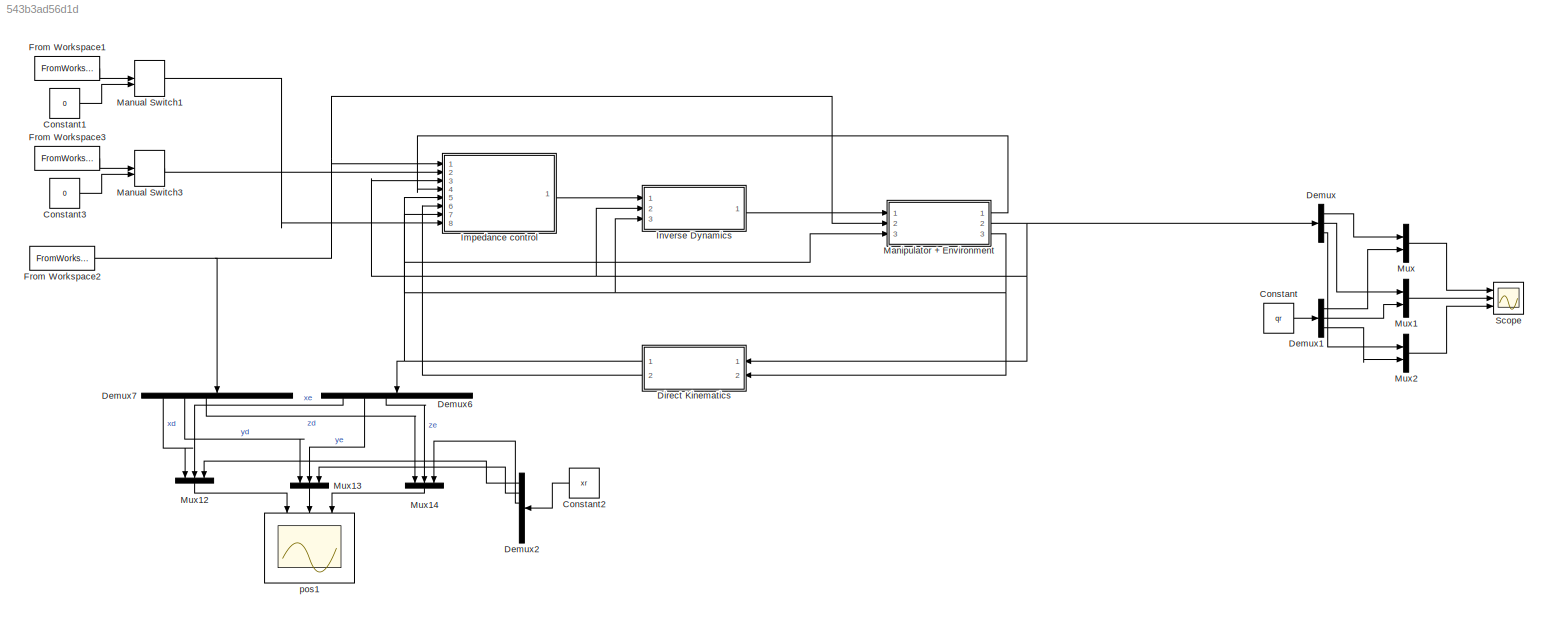
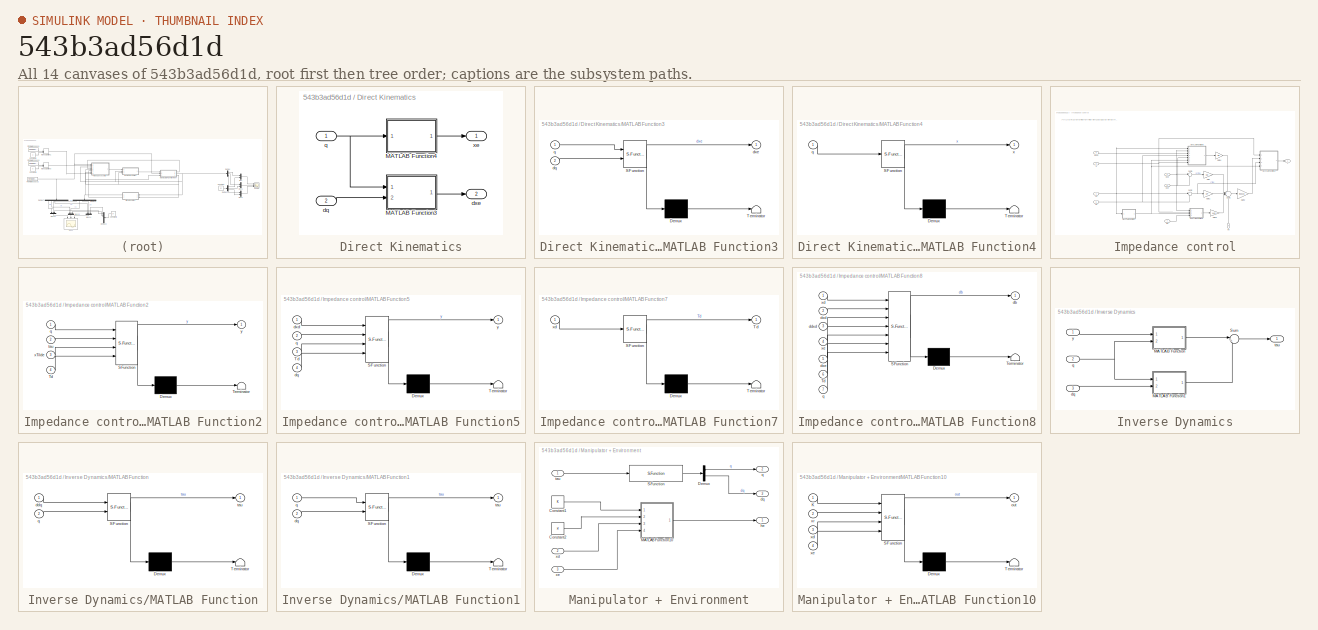
[diagram: thumbnail index - all 14 canvases of the model, root first then tree order]
MODEL slx_543b3ad56d1d
KIND model
CONFIG AbsTol = auto
CONFIG EnableMultiTasking = off
CONFIG FixedStep = Ts
CONFIG MaxStep = auto
CONFIG MinStep = auto
CONFIG RelTol = 1e-3
CONFIG SampleTimeConstraint = Unconstrained
CONFIG SolverName = FixedStepAuto
CONFIG StartTime = 0.0
CONFIG StopTime = 10
BLOCK [Constant] Constant
  Value = qr
BLOCK [Constant] Constant1
  Value = 0
BLOCK [Constant] Constant2
  NameLocation = top
  Value = xr
BLOCK [Constant] Constant3
  Value = 0
BLOCK [Demux] Demux
  Outputs = 3
  Ports = [1, 3]
BLOCK [Demux] Demux1
  Outputs = 3
  Ports = [1, 3]
BLOCK [Demux] Demux2
  NameLocation = top
  Outputs = 6
  Ports = [1, 6]
BLOCK [Demux] Demux6
  NameLocation = left
  Outputs = 6
  Ports = [1, 6]
BLOCK [Demux] Demux7
  NameLocation = left
  Outputs = 6
  Ports = [1, 6]
BLOCK [SubSystem] Direct Kinematics
  Ports = [2, 2]
  RequestExecContextInheritance = off
BLOCK [SubSystem] Direct Kinematics/MATLAB Function3
  ErrorFcn = Stateflow.Translate.translate
  PermitHierarchicalResolution = ExplicitOnly
  Ports = [2, 1]
  RequestExecContextInheritance = off
  SFBlockType = MATLAB Function
  TreatAsAtomicUnit = on
BLOCK [Demux] Direct Kinematics/MATLAB Function3/ Demux 
  Outputs = 1
  Ports = [1, 1]
BLOCK [S-Function] Direct Kinematics/MATLAB Function3/ SFunction 
  EnableBusSupport = on
  FunctionName = sf_sfun
  PortCounts = [2 2]
  Ports = [2, 2]
  SFcnIsStateOwnerBlock = off
  SFunctionDeploymentMode = off
  Tag = Stateflow S-Function 10
BLOCK [Terminator] Direct Kinematics/MATLAB Function3/ Terminator 
BLOCK [Inport] Direct Kinematics/MATLAB Function3/dq
  Port = 2
BLOCK [Outport] Direct Kinematics/MATLAB Function3/dxe
BLOCK [Inport] Direct Kinematics/MATLAB Function3/q
BLOCK [SubSystem] Direct Kinematics/MATLAB Function4
  ErrorFcn = Stateflow.Translate.translate
  PermitHierarchicalResolution = ExplicitOnly
  Ports = [1, 1]
  RequestExecContextInheritance = off
  SFBlockType = MATLAB Function
  TreatAsAtomicUnit = on
BLOCK [Demux] Direct Kinematics/MATLAB Function4/ Demux 
  Outputs = 1
  Ports = [1, 1]
BLOCK [S-Function] Direct Kinematics/MATLAB Function4/ SFunction 
  EnableBusSupport = on
  FunctionName = sf_sfun
  PortCounts = [1 2]
  Ports = [1, 2]
  SFcnIsStateOwnerBlock = off
  SFunctionDeploymentMode = off
  Tag = Stateflow S-Function 13
BLOCK [Terminator] Direct Kinematics/MATLAB Function4/ Terminator 
BLOCK [Inport] Direct Kinematics/MATLAB Function4/q
BLOCK [Outport] Direct Kinematics/MATLAB Function4/x
BLOCK [Inport] Direct Kinematics/dq
  Port = 2
BLOCK [Outport] Direct Kinematics/dxe
  Port = 2
BLOCK [Inport] Direct Kinematics/q
BLOCK [Outport] Direct Kinematics/xe
BLOCK [FromWorkspace] From Workspace1
  VariableName = ddxd
BLOCK [FromWorkspace] From Workspace2
  VariableName = xd
BLOCK [FromWorkspace] From Workspace3
  VariableName = dxd
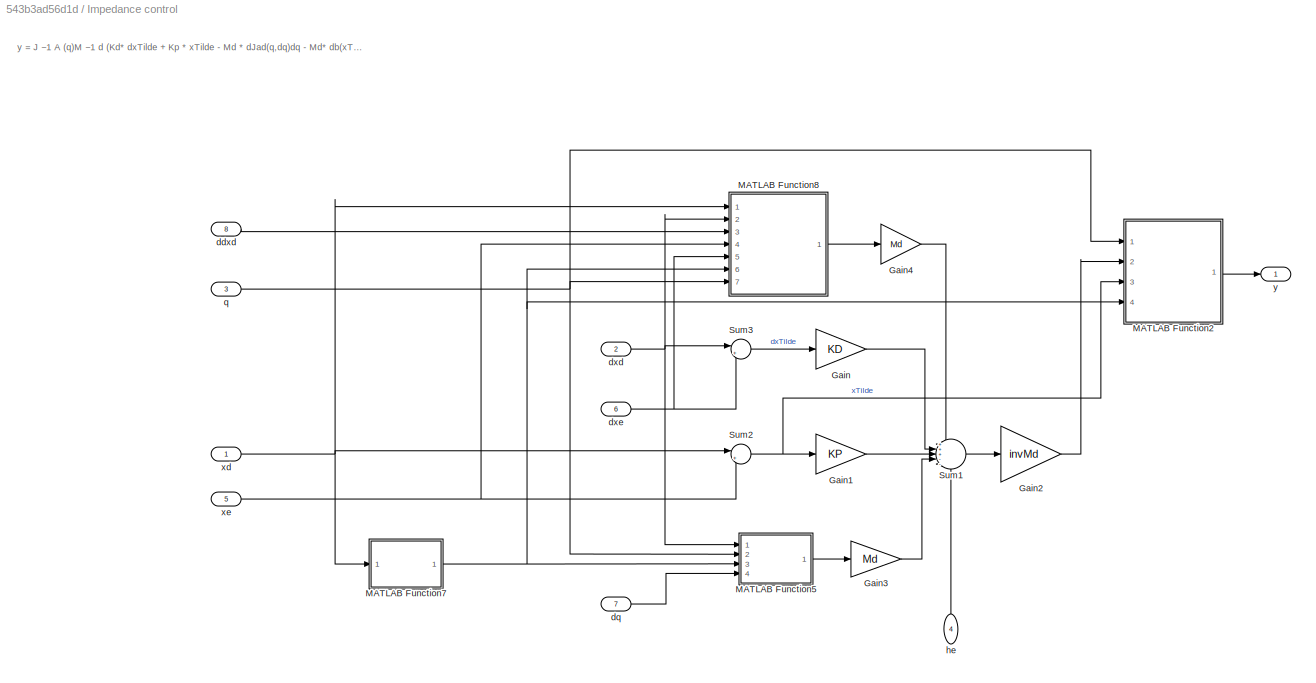
BLOCK [SubSystem] Impedance control
  Ports = [8, 1]
  RequestExecContextInheritance = off
BLOCK [Gain] Impedance control/Gain
  Gain = KD
BLOCK [Gain] Impedance control/Gain1
  Gain = KP
BLOCK [Gain] Impedance control/Gain2
  Gain = invMd
  Multiplication = Matrix(K*u)
BLOCK [Gain] Impedance control/Gain3
  Gain = Md
  Multiplication = Matrix(K*u)
BLOCK [Gain] Impedance control/Gain4
  Gain = Md
  Multiplication = Matrix(K*u)
BLOCK [SubSystem] Impedance control/MATLAB Function2
  ErrorFcn = Stateflow.Translate.translate
  PermitHierarchicalResolution = ExplicitOnly
  Ports = [4, 1]
  RequestExecContextInheritance = off
  SFBlockType = MATLAB Function
  TreatAsAtomicUnit = on
BLOCK [Demux] Impedance control/MATLAB Function2/ Demux 
  Outputs = 1
  Ports = [1, 1]
BLOCK [S-Function] Impedance control/MATLAB Function2/ SFunction 
  EnableBusSupport = on
  FunctionName = sf_sfun
  PortCounts = [4 2]
  Ports = [4, 2]
  SFcnIsStateOwnerBlock = off
  SFunctionDeploymentMode = off
  Tag = Stateflow S-Function 12
BLOCK [Terminator] Impedance control/MATLAB Function2/ Terminator 
BLOCK [Inport] Impedance control/MATLAB Function2/Td
  Port = 4
BLOCK [Inport] Impedance control/MATLAB Function2/q
BLOCK [Inport] Impedance control/MATLAB Function2/tau
  Port = 2
BLOCK [Inport] Impedance control/MATLAB Function2/xTilde
  Port = 3
BLOCK [Outport] Impedance control/MATLAB Function2/y
BLOCK [SubSystem] Impedance control/MATLAB Function5
  ErrorFcn = Stateflow.Translate.translate
  PermitHierarchicalResolution = ExplicitOnly
  Ports = [4, 1]
  RequestExecContextInheritance = off
  SFBlockType = MATLAB Function
  TreatAsAtomicUnit = on
BLOCK [Demux] Impedance control/MATLAB Function5/ Demux 
  Outputs = 1
  Ports = [1, 1]
BLOCK [S-Function] Impedance control/MATLAB Function5/ SFunction 
  EnableBusSupport = on
  FunctionName = sf_sfun
  PortCounts = [4 2]
  Ports = [4, 2]
  SFcnIsStateOwnerBlock = off
  SFunctionDeploymentMode = off
  Tag = Stateflow S-Function 14
BLOCK [Terminator] Impedance control/MATLAB Function5/ Terminator 
BLOCK [Inport] Impedance control/MATLAB Function5/Td
  Port = 3
BLOCK [Inport] Impedance control/MATLAB Function5/dq
  Port = 4
BLOCK [Inport] Impedance control/MATLAB Function5/dxd
BLOCK [Inport] Impedance control/MATLAB Function5/q
  Port = 2
BLOCK [Outport] Impedance control/MATLAB Function5/y
BLOCK [SubSystem] Impedance control/MATLAB Function7
  ErrorFcn = Stateflow.Translate.translate
  PermitHierarchicalResolution = ExplicitOnly
  Ports = [1, 1]
  RequestExecContextInheritance = off
  SFBlockType = MATLAB Function
  TreatAsAtomicUnit = on
BLOCK [Demux] Impedance control/MATLAB Function7/ Demux 
  Outputs = 1
  Ports = [1, 1]
BLOCK [S-Function] Impedance control/MATLAB Function7/ SFunction 
  EnableBusSupport = on
  FunctionName = sf_sfun
  PortCounts = [1 2]
  Ports = [1, 2]
  SFcnIsStateOwnerBlock = off
  SFunctionDeploymentMode = off
  Tag = Stateflow S-Function 16
BLOCK [Terminator] Impedance control/MATLAB Function7/ Terminator 
BLOCK [Outport] Impedance control/MATLAB Function7/Td
BLOCK [Inport] Impedance control/MATLAB Function7/xd
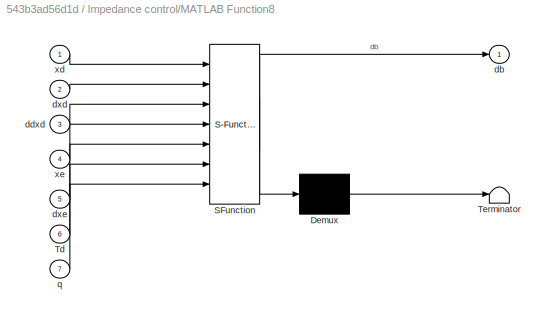
BLOCK [SubSystem] Impedance control/MATLAB Function8
  ErrorFcn = Stateflow.Translate.translate
  PermitHierarchicalResolution = ExplicitOnly
  Ports = [7, 1]
  RequestExecContextInheritance = off
  SFBlockType = MATLAB Function
  TreatAsAtomicUnit = on
BLOCK [Demux] Impedance control/MATLAB Function8/ Demux 
  Outputs = 1
  Ports = [1, 1]
BLOCK [S-Function] Impedance control/MATLAB Function8/ SFunction 
  EnableBusSupport = on
  FunctionName = sf_sfun
  PortCounts = [7 2]
  Ports = [7, 2]
  SFcnIsStateOwnerBlock = off
  SFunctionDeploymentMode = off
  Tag = Stateflow S-Function 17
BLOCK [Terminator] Impedance control/MATLAB Function8/ Terminator 
BLOCK [Inport] Impedance control/MATLAB Function8/Td
  Port = 6
BLOCK [Outport] Impedance control/MATLAB Function8/db
BLOCK [Inport] Impedance control/MATLAB Function8/ddxd
  Port = 3
BLOCK [Inport] Impedance control/MATLAB Function8/dxd
  Port = 2
BLOCK [Inport] Impedance control/MATLAB Function8/dxe
  Port = 5
BLOCK [Inport] Impedance control/MATLAB Function8/q
  Port = 7
BLOCK [Inport] Impedance control/MATLAB Function8/xd
BLOCK [Inport] Impedance control/MATLAB Function8/xe
  Port = 4
BLOCK [Sum] Impedance control/Sum1
  Inputs = +++--
  Ports = [5, 1]
BLOCK [Sum] Impedance control/Sum2
  Inputs = |+-
  Ports = [2, 1]
BLOCK [Sum] Impedance control/Sum3
  Inputs = |+-
  Ports = [2, 1]
BLOCK [Inport] Impedance control/ddxd
  Port = 8
BLOCK [Inport] Impedance control/dq
  Port = 7
BLOCK [Inport] Impedance control/dxd
  Port = 2
BLOCK [Inport] Impedance control/dxe
  Port = 6
BLOCK [Inport] Impedance control/he
  NameLocation = left
  Port = 4
BLOCK [Inport] Impedance control/q
  Port = 3
BLOCK [Inport] Impedance control/xd
BLOCK [Inport] Impedance control/xe
  Port = 5
BLOCK [Outport] Impedance control/y
BLOCK [SubSystem] Inverse Dynamics
  Ports = [3, 1]
  RequestExecContextInheritance = off
BLOCK [SubSystem] Inverse Dynamics/MATLAB Function
  ErrorFcn = Stateflow.Translate.translate
  PermitHierarchicalResolution = ExplicitOnly
  Ports = [2, 1]
  RequestExecContextInheritance = off
  SFBlockType = MATLAB Function
  TreatAsAtomicUnit = on
BLOCK [Demux] Inverse Dynamics/MATLAB Function/ Demux 
  Outputs = 1
  Ports = [1, 1]
BLOCK [S-Function] Inverse Dynamics/MATLAB Function/ SFunction 
  EnableBusSupport = on
  FunctionName = sf_sfun
  PortCounts = [2 2]
  Ports = [2, 2]
  SFcnIsStateOwnerBlock = off
  SFunctionDeploymentMode = off
  Tag = Stateflow S-Function 18
BLOCK [Terminator] Inverse Dynamics/MATLAB Function/ Terminator 
BLOCK [Inport] Inverse Dynamics/MATLAB Function/ddq
BLOCK [Inport] Inverse Dynamics/MATLAB Function/q
  Port = 2
BLOCK [Outport] Inverse Dynamics/MATLAB Function/tau
BLOCK [SubSystem] Inverse Dynamics/MATLAB Function1
  ErrorFcn = Stateflow.Translate.translate
  PermitHierarchicalResolution = ExplicitOnly
  Ports = [2, 1]
  RequestExecContextInheritance = off
  SFBlockType = MATLAB Function
  TreatAsAtomicUnit = on
BLOCK [Demux] Inverse Dynamics/MATLAB Function1/ Demux 
  Outputs = 1
  Ports = [1, 1]
BLOCK [S-Function] Inverse Dynamics/MATLAB Function1/ SFunction 
  EnableBusSupport = on
  FunctionName = sf_sfun
  PortCounts = [2 2]
  Ports = [2, 2]
  SFcnIsStateOwnerBlock = off
  SFunctionDeploymentMode = off
  Tag = Stateflow S-Function 19
BLOCK [Terminator] Inverse Dynamics/MATLAB Function1/ Terminator 
BLOCK [Inport] Inverse Dynamics/MATLAB Function1/dq
  Port = 2
BLOCK [Inport] Inverse Dynamics/MATLAB Function1/q
BLOCK [Outport] Inverse Dynamics/MATLAB Function1/tau
BLOCK [Sum] Inverse Dynamics/Sum
  Inputs = |++
  Ports = [2, 1]
BLOCK [Inport] Inverse Dynamics/dq
  Port = 3
BLOCK [Inport] Inverse Dynamics/q
  Port = 2
BLOCK [Outport] Inverse Dynamics/tau
BLOCK [Inport] Inverse Dynamics/y
BLOCK [SubSystem] Manipulator + Environment
  Ports = [3, 3]
  RequestExecContextInheritance = off
BLOCK [Constant] Manipulator + Environment/Constant1
  Value = K
BLOCK [Constant] Manipulator + Environment/Constant2
  Value = xr
BLOCK [Demux] Manipulator + Environment/Demux
  Outputs = 2
  Ports = [1, 2]
BLOCK [SubSystem] Manipulator + Environment/MATLAB Function10
  ErrorFcn = Stateflow.Translate.translate
  PermitHierarchicalResolution = ExplicitOnly
  Ports = [4, 1]
  RequestExecContextInheritance = off
  SFBlockType = MATLAB Function
  TreatAsAtomicUnit = on
BLOCK [Demux] Manipulator + Environment/MATLAB Function10/ Demux 
  Outputs = 1
  Ports = [1, 1]
BLOCK [S-Function] Manipulator + Environment/MATLAB Function10/ SFunction 
  EnableBusSupport = on
  FunctionName = sf_sfun
  PortCounts = [4 2]
  Ports = [4, 2]
  SFcnIsStateOwnerBlock = off
  SFunctionDeploymentMode = off
  Tag = Stateflow S-Function 20
BLOCK [Terminator] Manipulator + Environment/MATLAB Function10/ Terminator 
BLOCK [Inport] Manipulator + Environment/MATLAB Function10/K
BLOCK [Outport] Manipulator + Environment/MATLAB Function10/out
BLOCK [Inport] Manipulator + Environment/MATLAB Function10/xd
  Port = 3
BLOCK [Inport] Manipulator + Environment/MATLAB Function10/xe
  Port = 4
BLOCK [Inport] Manipulator + Environment/MATLAB Function10/xr
  Port = 2
BLOCK [S-Function] Manipulator + Environment/S-Function
  EnableBusSupport = off
  FunctionName = fwd_dyn_joint_lagrangian
  Parameters = myRobot,qi,dqi
  Ports = [1, 1]
  SFcnIsStateOwnerBlock = off
  SFunctionDeploymentMode = off
BLOCK [Outport] Manipulator + Environment/dq
  Port = 3
BLOCK [Outport] Manipulator + Environment/he
BLOCK [Outport] Manipulator + Environment/q
  Port = 2
BLOCK [Inport] Manipulator + Environment/tau
BLOCK [Inport] Manipulator + Environment/xd
  Port = 2
BLOCK [Inport] Manipulator + Environment/xe
  Port = 3
BLOCK [ManualSwitch] Manual Switch1
BLOCK [ManualSwitch] Manual Switch3
BLOCK [Mux] Mux
  DisplayOption = bar
  Inputs = 2
  Ports = [2, 1]
BLOCK [Mux] Mux1
  DisplayOption = bar
  Inputs = 2
  Ports = [2, 1]
BLOCK [Mux] Mux12
  DisplayOption = bar
  Inputs = 3
  NameLocation = left
  Ports = [3, 1]
BLOCK [Mux] Mux13
  DisplayOption = bar
  Inputs = 3
  NameLocation = left
  Ports = [3, 1]
BLOCK [Mux] Mux14
  DisplayOption = bar
  Inputs = 3
  NameLocation = left
  Ports = [3, 1]
BLOCK [Mux] Mux2
  DisplayOption = bar
  Inputs = 2
  Ports = [2, 1]
BLOCK [Scope] Scope
  Floating = off
  NumInputPorts = 3
  Ports = [3]
  ScopeSpecificationString = Simulink.scopes.TimeScopeBlockCfg('CurrentConfiguration', extmgr.ConfigurationSet(extmgr.Configuration('Core','General UI',true),extmgr.Configuration('Core','Source UI',true),extmgr.Configuration('Sources','WiredSimulink',true,'DataLoggingVariableName','ScopeData1'),extmgr.Configuration('Visuals','Time Domain',true,'SerializedDisplays',{struct('MinYLimReal','-0.0605','MaxYLimReal','0.22788','YLabe...<+2779ch>
BLOCK [Scope] pos1
  Floating = off
  NameLocation = left
  NumInputPorts = 3
  Ports = [3]
  ScopeSpecificationString = Simulink.scopes.TimeScopeBlockCfg('CurrentConfiguration', extmgr.ConfigurationSet(extmgr.Configuration('Core','General UI',true),extmgr.Configuration('Core','Source UI',true),extmgr.Configuration('Sources','WiredSimulink',true,'DataLoggingVariableName','ScopeData1'),extmgr.Configuration('Visuals','Time Domain',true,'SerializedDisplays',{struct('MinYLimReal','0.54','MaxYLimReal','0.74','YLabelReal'...<+3409ch>
ANNOTATION Impedance control: y = J −1 A (q)M −1 d ( Kd* dxTilde + Kp * xTilde - Md * dJad(q,dq)dq - Md* db(xTilde, Rd, dod, wd) - hde)
LINE Constant1:1 -> Manual Switch1:2
LINE Constant2:1 -> Demux2:1
LINE Constant3:1 -> Manual Switch3:2
LINE Constant:1 -> Demux1:1
LINE Demux1:1 -> Mux:2
LINE Demux1:2 -> Mux1:2
LINE Demux1:3 -> Mux2:2
LINE Demux2:1 -> Mux12:3
LINE Demux2:2 -> Mux13:3
LINE Demux2:3 -> Mux14:3
LINE Demux6:1 -> Mux12:2
LINE Demux6:2 -> Mux13:2
LINE Demux6:3 -> Mux14:2
LINE Demux7:1 -> Mux12:1
LINE Demux7:2 -> Mux13:1
LINE Demux7:3 -> Mux14:1
LINE Demux:1 -> Mux:1
LINE Demux:2 -> Mux1:1
LINE Demux:3 -> Mux2:1
LINE Direct Kinematics/MATLAB Function3:1 -> Direct Kinematics/dxe:1
LINE Direct Kinematics/MATLAB Function4:1 -> Direct Kinematics/xe:1
LINE Direct Kinematics/dq:1 -> Direct Kinematics/MATLAB Function3:2
NET Direct Kinematics/q:1 -> Direct Kinematics/MATLAB Function3:1, Direct Kinematics/MATLAB Function4:1
NET Direct Kinematics:1 -> Demux6:1, Impedance control:5, Manipulator + Environment:3
LINE Direct Kinematics:2 -> Impedance control:6
LINE From Workspace1:1 -> Manual Switch1:1
NET From Workspace2:1 -> Demux7:1, Impedance control:1, Manipulator + Environment:2
LINE From Workspace3:1 -> Manual Switch3:1
LINE Impedance control/Gain1:1 -> Impedance control/Sum1:3
LINE Impedance control/Gain2:1 -> Impedance control/MATLAB Function2:2
LINE Impedance control/Gain3:1 -> Impedance control/Sum1:4
LINE Impedance control/Gain4:1 -> Impedance control/Sum1:1
LINE Impedance control/Gain:1 -> Impedance control/Sum1:2
LINE Impedance control/MATLAB Function2:1 -> Impedance control/y:1
LINE Impedance control/MATLAB Function5:1 -> Impedance control/Gain3:1
NET Impedance control/MATLAB Function7:1 -> Impedance control/MATLAB Function2:4, Impedance control/MATLAB Function5:3, Impedance control/MATLAB Function8:6
LINE Impedance control/MATLAB Function8:1 -> Impedance control/Gain4:1
LINE Impedance control/Sum1:1 -> Impedance control/Gain2:1
NET Impedance control/Sum2:1 -> Impedance control/Gain1:1, Impedance control/MATLAB Function2:3
LINE Impedance control/Sum3:1 -> Impedance control/Gain:1
LINE Impedance control/ddxd:1 -> Impedance control/MATLAB Function8:3
LINE Impedance control/dq:1 -> Impedance control/MATLAB Function5:4
NET Impedance control/dxd:1 -> Impedance control/MATLAB Function5:1, Impedance control/MATLAB Function8:2, Impedance control/Sum3:1
NET Impedance control/dxe:1 -> Impedance control/MATLAB Function8:5, Impedance control/Sum3:2
LINE Impedance control/he:1 -> Impedance control/Sum1:5
NET Impedance control/q:1 -> Impedance control/MATLAB Function2:1, Impedance control/MATLAB Function5:2, Impedance control/MATLAB Function8:7
NET Impedance control/xd:1 -> Impedance control/MATLAB Function7:1, Impedance control/MATLAB Function8:1, Impedance control/Sum2:1
NET Impedance control/xe:1 -> Impedance control/MATLAB Function8:4, Impedance control/Sum2:2
LINE Impedance control:1 -> Inverse Dynamics:1
LINE Inverse Dynamics/MATLAB Function1:1 -> Inverse Dynamics/Sum:2
LINE Inverse Dynamics/MATLAB Function:1 -> Inverse Dynamics/Sum:1
LINE Inverse Dynamics/Sum:1 -> Inverse Dynamics/tau:1
LINE Inverse Dynamics/dq:1 -> Inverse Dynamics/MATLAB Function1:2
NET Inverse Dynamics/q:1 -> Inverse Dynamics/MATLAB Function1:1, Inverse Dynamics/MATLAB Function:2
LINE Inverse Dynamics/y:1 -> Inverse Dynamics/MATLAB Function:1
LINE Inverse Dynamics:1 -> Manipulator + Environment:1
LINE Manipulator + Environment/Constant1:1 -> Manipulator + Environment/MATLAB Function10:1
LINE Manipulator + Environment/Constant2:1 -> Manipulator + Environment/MATLAB Function10:2
LINE Manipulator + Environment/Demux:1 -> Manipulator + Environment/q:1
LINE Manipulator + Environment/Demux:2 -> Manipulator + Environment/dq:1
LINE Manipulator + Environment/MATLAB Function10:1 -> Manipulator + Environment/he:1
LINE Manipulator + Environment/S-Function:1 -> Manipulator + Environment/Demux:1
LINE Manipulator + Environment/tau:1 -> Manipulator + Environment/S-Function:1
LINE Manipulator + Environment/xd:1 -> Manipulator + Environment/MATLAB Function10:3
LINE Manipulator + Environment/xe:1 -> Manipulator + Environment/MATLAB Function10:4
LINE Manipulator + Environment:1 -> Impedance control:4
NET Manipulator + Environment:2 -> Demux:1, Direct Kinematics:1, Impedance control:3, Inverse Dynamics:2
NET Manipulator + Environment:3 -> Direct Kinematics:2, Impedance control:7, Inverse Dynamics:3
LINE Manual Switch1:1 -> Impedance control:8
LINE Manual Switch3:1 -> Impedance control:2
LINE Mux12:1 -> pos1:1
LINE Mux13:1 -> pos1:2
LINE Mux14:1 -> pos1:3
LINE Mux1:1 -> Scope:2
LINE Mux2:1 -> Scope:3
LINE Mux:1 -> Scope:1
note: NET lines group one-source signal fan-out (src -> all destinations, sorted); 1:1 wires keep LINE
CHART Direct Kinematics/MATLAB Function3 states=1 transitions=1
  STATE_LABEL 'eML_blk_kernel()'
  STATE_LABEL 'SCRIPT:\nfunction dxe = Ja(q, dq)\n\ndxe = getJa(q)*dq;\n'
CHART Impedance control/MATLAB Function2 states=1 transitions=1
  STATE_LABEL 'eML_blk_kernel()'
  STATE_LABEL 'SCRIPT:\nfunction y = invJad(q, tau, xTilde, Td)\njad = getJad(q, xTilde, Td);\ny = pinv(jad)*tau;\n'
CHART Direct Kinematics/MATLAB Function4 states=1 transitions=1
  STATE_LABEL 'eML_blk_kernel()'
  STATE_LABEL 'SCRIPT:\nfunction x = k(q)\n\nx = getK(q);\n'
CHART Impedance control/MATLAB Function5 states=1 transitions=1
  STATE_LABEL 'eML_blk_kernel()'
  STATE_LABEL 'SCRIPT:\nfunction y = dJadq(dxd, q, Td,dq)\n    y = getDiffJad(dxd,q,Td,dq)*dq;\n\n'
CHART Impedance control/MATLAB Function7 states=1 transitions=1
  STATE_LABEL 'eML_blk_kernel()'
  STATE_LABEL "SCRIPT:\nfunction Td = getTd(xd)\nRd = eul2rotm(xd(4:6)','ZYZ');\nt = xd(1:3);\nTd = [Rd t\n    zeros(1,3) 1];"
CHART Impedance control/MATLAB Function8 states=1 transitions=1
  STATE_LABEL 'eML_blk_kernel()'
  STATE_LABEL 'SCRIPT:\nfunction db = diffB(xd,dxd,ddxd,xe,dxe, Td,q)\n\ndb = getDiffImpB(xd,dxd,ddxd,xe,dxe, Td,q);\n'
CHART Inverse Dynamics/MATLAB Function states=1 transitions=1
  STATE_LABEL 'eML_blk_kernel()'
  STATE_LABEL 'SCRIPT:\nfunction tau = B(ddq,q) \n\ntau = getB(q)*ddq;\n'
CHART Inverse Dynamics/MATLAB Function1 states=1 transitions=1
  STATE_LABEL 'eML_blk_kernel()'
  STATE_LABEL 'SCRIPT:\nfunction tau = n(q, dq)\n\ntau = getN(q, dq);\n'
CHART Manipulator + Environment/MATLAB Function10 states=1 transitions=1
  STATE_LABEL 'eML_blk_kernel()'
  STATE_LABEL 'SCRIPT:\nfunction out = hde(K,xr, xd, xe)\n%consider the interaction only in z direction\n%xe(2) > xr(2) || xe(1) > xr(1)\n% if the end effector touch the environment \nhe = zeros(6,1);\n\nif xe(3) < xr(3)\n    %The interaction force between the end-effector and the environment is\n    dxrd = xd-xr;\n    dxed = xd-xe;\n    dxre = dxrd-dxed;\n    he = K*dxre;\nend\n\nout = he;'
CHART  states=0 transitions=0
CHART  states=0 transitions=0
CHART  states=0 transitions=0
CHART  states=0 transitions=0
CHART  states=0 transitions=0
CHART  states=0 transitions=0
CHART  states=0 transitions=0
CHART  states=0 transitions=0
CHART  states=0 transitions=0
